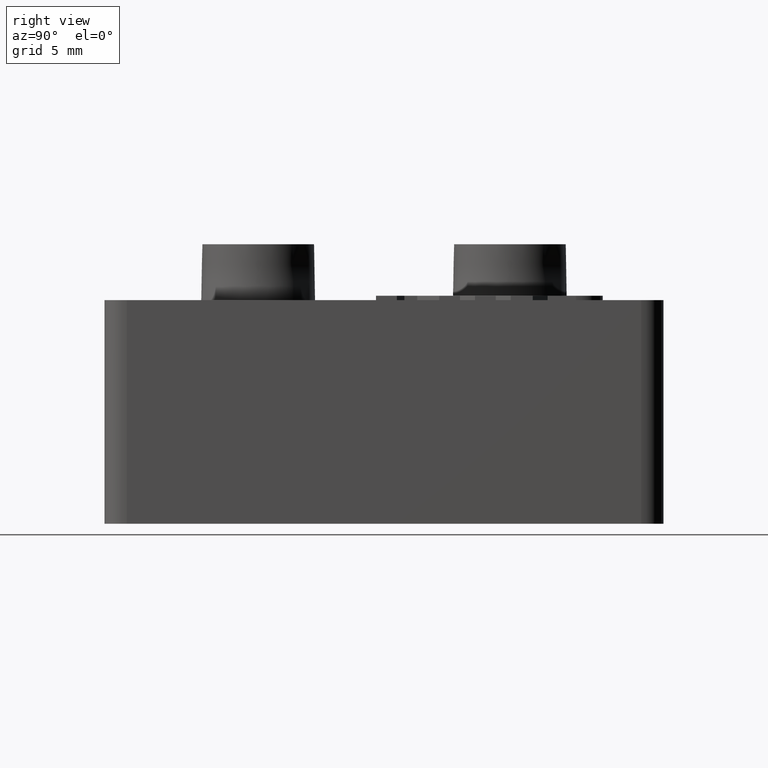
[diagram: clean part render]
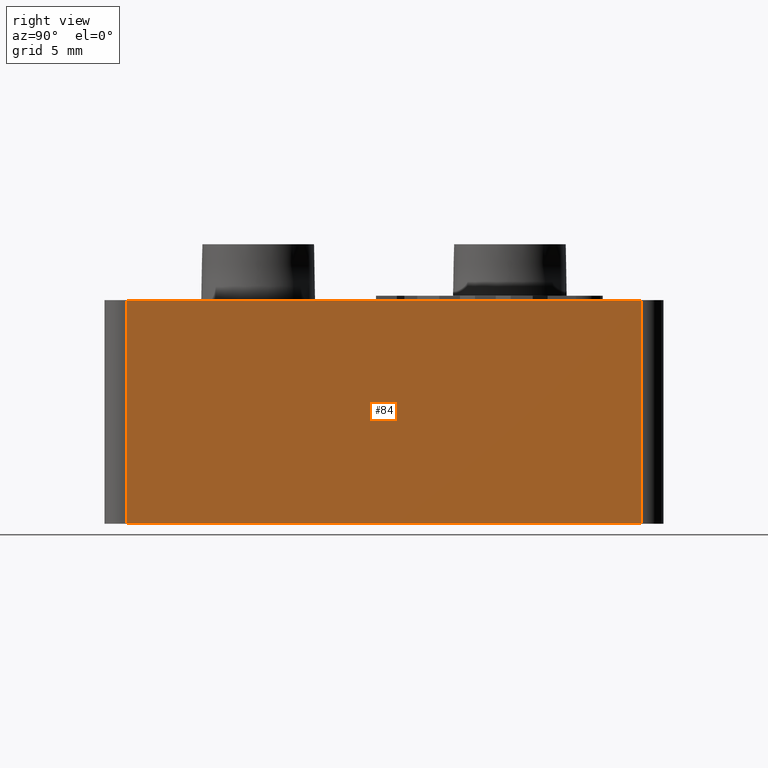
[diagram: same view with one face highlighted and labeled with its STEP entity id]
A machine part, right view. The second image highlights one B-rep face of the part: STEP entity #84.
In plain terms, the highlighted planar face has unit normal (1, 0, 0).
Its self-contained STEP definition (entity closure, byte-faithful):
#84 = ADVANCED_FACE( '', ( #246 ), #247, .T. );
#246 = FACE_OUTER_BOUND( '', #532, .T. );
#247 = PLANE( '', #533 );
#532 = EDGE_LOOP( '', ( #953, #954, #955, #956 ) );
#533 = AXIS2_PLACEMENT_3D( '', #957, #958, #959 );
#953 = ORIENTED_EDGE( '', *, *, #1962, .T. );
#954 = ORIENTED_EDGE( '', *, *, #1904, .F. );
#955 = ORIENTED_EDGE( '', *, *, #1961, .F. );
#956 = ORIENTED_EDGE( '', *, *, #1932, .T. );
#957 = CARTESIAN_POINT( '', ( 8.50000000000000, 11.5000000000000, 49.8239706054816 ) );
#958 = DIRECTION( '', ( 1.00000000000000, 1.91923074984470E-032, 1.12139804483893E-016 ) );
#959 = DIRECTION( '', ( -6.95622983877325E-033, -1.00000000000000, 2.33178017899756E-016 ) );
#1904 = EDGE_CURVE( '', #2304, #2305, #2306, .T. );
#1932 = EDGE_CURVE( '', #2348, #2357, #2359, .T. );
#1961 = EDGE_CURVE( '', #2348, #2304, #2410, .T. );
#1962 = EDGE_CURVE( '', #2357, #2305, #2411, .T. );
#2304 = VERTEX_POINT( '', #2924 );
#2305 = VERTEX_POINT( '', #2925 );
#2306 = LINE( '', #2926, #2927 );
#2348 = VERTEX_POINT( '', #2986 );
#2357 = VERTEX_POINT( '', #2997 );
#2359 = LINE( '', #2999, #3000 );
#2410 = LINE( '', #3075, #3076 );
#2411 = LINE( '', #3077, #3078 );
#2924 = CARTESIAN_POINT( '', ( 8.50000000000001, 11.5000000000000, -7.04148653447867E-016 ) );
#2925 = CARTESIAN_POINT( '', ( 8.50000000000001, -11.5000000000000, 7.04148653447866E-016 ) );
#2926 = CARTESIAN_POINT( '', ( 8.50000000000001, 2.77555756156289E-015, -1.69948271264483E-031 ) );
#2927 = VECTOR( '', #3640, 1000.00000000000 );
#2986 = CARTESIAN_POINT( '', ( 8.50000000000001, 11.5000000000000, 10.0000000000000 ) );
#2997 = CARTESIAN_POINT( '', ( 8.50000000000001, -11.5000000000000, 10.0000000000000 ) );
#2999 = CARTESIAN_POINT( '', ( 8.50000000000001, 3.38786073847408E-015, 10.0000000000000 ) );
#3000 = VECTOR( '', #3684, 1000.00000000000 );
#3075 = CARTESIAN_POINT( '', ( 8.50000000000000, 11.5000000000000, 49.8239706054816 ) );
#3076 = VECTOR( '', #3721, 1000.00000000000 );
#3077 = CARTESIAN_POINT( '', ( 8.50000000000000, -11.5000000000000, 49.8239706054816 ) );
#3078 = VECTOR( '', #3722, 1000.00000000000 );
#3640 = DIRECTION( '', ( 1.23259516440783E-032, -1.00000000000000, 6.12303176911189E-017 ) );
#3684 = DIRECTION( '', ( 1.23259516440783E-032, -1.00000000000000, 6.12303176911189E-017 ) );
#3721 = DIRECTION( '', ( 1.12139804483893E-016, -2.33178017899756E-016, -1.00000000000000 ) );
#3722 = DIRECTION( '', ( 1.12139804483893E-016, -2.33178017899756E-016, -1.00000000000000 ) );